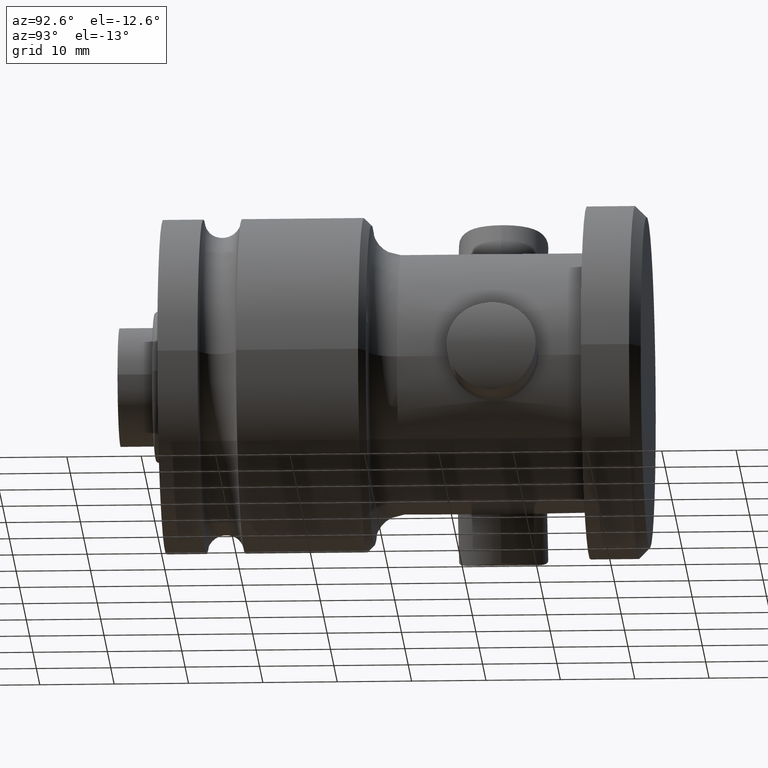
[diagram: clean part render]
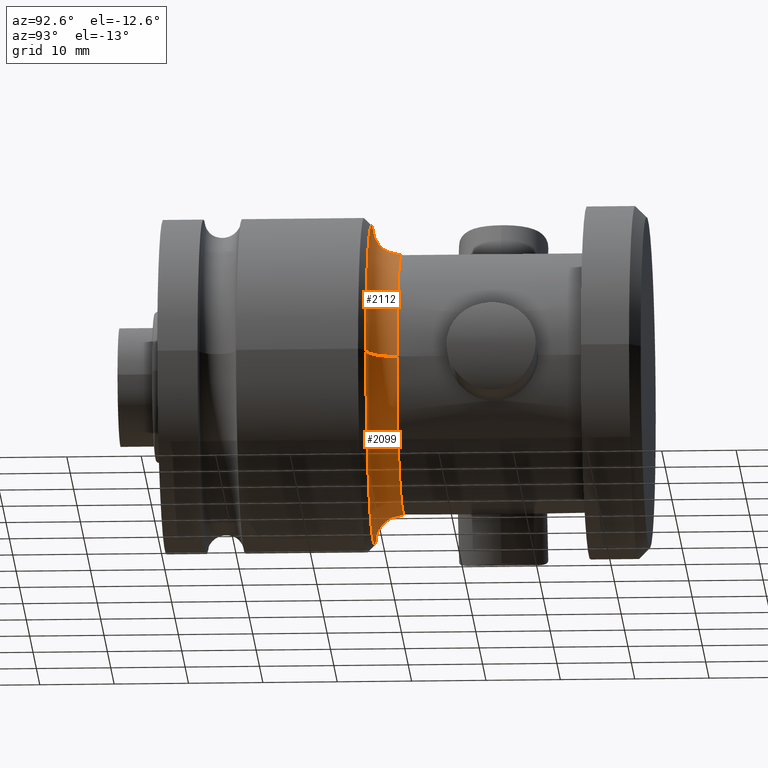
[diagram: same view with one multi-face feature highlighted, each face labeled with its STEP entity id]
A machine part, auxiliary view. The highlighted faces form ONE feature: a constant-radius fillet chain: 2 tangent blend faces with common blend radius 4 mm. The faces share edges in the B-rep.
Their STEP definitions:
[1] entity #2099 (Torus):
#570=CARTESIAN_POINT('',(0.E0,2.8E1,0.E0));
#571=DIRECTION('',(0.E0,1.E0,0.E0));
#572=DIRECTION('',(1.E0,0.E0,0.E0));
#573=AXIS2_PLACEMENT_3D('',#570,#571,#572);
#578=CARTESIAN_POINT('',(2.15E1,3.2E1,0.E0));
#579=DIRECTION('',(0.E0,0.E0,-1.E0));
#580=DIRECTION('',(0.E0,-1.E0,0.E0));
#581=AXIS2_PLACEMENT_3D('',#578,#579,#580);
#594=CARTESIAN_POINT('',(-2.15E1,3.2E1,0.E0));
#595=DIRECTION('',(0.E0,0.E0,1.E0));
#596=DIRECTION('',(0.E0,-1.E0,0.E0));
#597=AXIS2_PLACEMENT_3D('',#594,#595,#596);
#702=CARTESIAN_POINT('',(0.E0,3.2E1,0.E0));
#703=DIRECTION('',(0.E0,1.E0,0.E0));
#704=DIRECTION('',(1.E0,0.E0,0.E0));
#705=AXIS2_PLACEMENT_3D('',#702,#703,#704);
#1469=CARTESIAN_POINT('',(2.15E1,2.8E1,0.E0));
#1470=VERTEX_POINT('',#1469);
#1471=CARTESIAN_POINT('',(1.75E1,3.2E1,0.E0));
#1472=VERTEX_POINT('',#1471);
#1491=CARTESIAN_POINT('',(-2.15E1,2.8E1,0.E0));
#1492=VERTEX_POINT('',#1491);
#1493=CARTESIAN_POINT('',(-1.75E1,3.2E1,0.E0));
#1494=VERTEX_POINT('',#1493);
#2085=CARTESIAN_POINT('',(0.E0,3.2E1,0.E0));
#2086=DIRECTION('',(0.E0,1.E0,0.E0));
#2087=DIRECTION('',(1.E0,0.E0,0.E0));
#2088=AXIS2_PLACEMENT_3D('',#2085,#2086,#2087);
#2089=TOROIDAL_SURFACE('',#2088,2.15E1,4.E0);
#2091=ORIENTED_EDGE('',*,*,#2090,.T.);
#2093=ORIENTED_EDGE('',*,*,#2092,.T.);
#2095=ORIENTED_EDGE('',*,*,#2094,.F.);
#2096=ORIENTED_EDGE('',*,*,#2078,.F.);
#2097=EDGE_LOOP('',(#2091,#2093,#2095,#2096));
#2098=FACE_OUTER_BOUND('',#2097,.F.);
#574=CIRCLE('',#573,2.15E1);
#582=CIRCLE('',#581,4.E0);
#598=CIRCLE('',#597,4.E0);
#706=CIRCLE('',#705,1.75E1);
#2078=EDGE_CURVE('',#1470,#1492,#574,.T.);
#2090=EDGE_CURVE('',#1470,#1472,#582,.T.);
#2092=EDGE_CURVE('',#1472,#1494,#706,.T.);
#2094=EDGE_CURVE('',#1492,#1494,#598,.T.);
#2099=ADVANCED_FACE('',(#2098),#2089,.F.);
[2] entity #2112 (Torus):
#578=CARTESIAN_POINT('',(2.15E1,3.2E1,0.E0));
#579=DIRECTION('',(0.E0,0.E0,-1.E0));
#580=DIRECTION('',(0.E0,-1.E0,0.E0));
#581=AXIS2_PLACEMENT_3D('',#578,#579,#580);
#586=CARTESIAN_POINT('',(0.E0,2.8E1,0.E0));
#587=DIRECTION('',(0.E0,-1.E0,0.E0));
#588=DIRECTION('',(1.E0,0.E0,0.E0));
#589=AXIS2_PLACEMENT_3D('',#586,#587,#588);
#594=CARTESIAN_POINT('',(-2.15E1,3.2E1,0.E0));
#595=DIRECTION('',(0.E0,0.E0,1.E0));
#596=DIRECTION('',(0.E0,-1.E0,0.E0));
#597=AXIS2_PLACEMENT_3D('',#594,#595,#596);
#609=CARTESIAN_POINT('',(0.E0,3.2E1,0.E0));
#610=DIRECTION('',(0.E0,-1.E0,0.E0));
#611=DIRECTION('',(1.E0,0.E0,0.E0));
#612=AXIS2_PLACEMENT_3D('',#609,#610,#611);
#1469=CARTESIAN_POINT('',(2.15E1,2.8E1,0.E0));
#1470=VERTEX_POINT('',#1469);
#1471=CARTESIAN_POINT('',(1.75E1,3.2E1,0.E0));
#1472=VERTEX_POINT('',#1471);
#1491=CARTESIAN_POINT('',(-2.15E1,2.8E1,0.E0));
#1492=VERTEX_POINT('',#1491);
#1493=CARTESIAN_POINT('',(-1.75E1,3.2E1,0.E0));
#1494=VERTEX_POINT('',#1493);
#2100=CARTESIAN_POINT('',(0.E0,3.2E1,0.E0));
#2101=DIRECTION('',(0.E0,1.E0,0.E0));
#2102=DIRECTION('',(1.E0,0.E0,0.E0));
#2103=AXIS2_PLACEMENT_3D('',#2100,#2101,#2102);
#2104=TOROIDAL_SURFACE('',#2103,2.15E1,4.E0);
#2105=ORIENTED_EDGE('',*,*,#2090,.F.);
#2106=ORIENTED_EDGE('',*,*,#2067,.T.);
#2107=ORIENTED_EDGE('',*,*,#2094,.T.);
#2109=ORIENTED_EDGE('',*,*,#2108,.F.);
#2110=EDGE_LOOP('',(#2105,#2106,#2107,#2109));
#2111=FACE_OUTER_BOUND('',#2110,.F.);
#582=CIRCLE('',#581,4.E0);
#590=CIRCLE('',#589,2.15E1);
#598=CIRCLE('',#597,4.E0);
#613=CIRCLE('',#612,1.75E1);
#2067=EDGE_CURVE('',#1470,#1492,#590,.T.);
#2090=EDGE_CURVE('',#1470,#1472,#582,.T.);
#2094=EDGE_CURVE('',#1492,#1494,#598,.T.);
#2108=EDGE_CURVE('',#1472,#1494,#613,.T.);
#2112=ADVANCED_FACE('',(#2111),#2104,.F.);